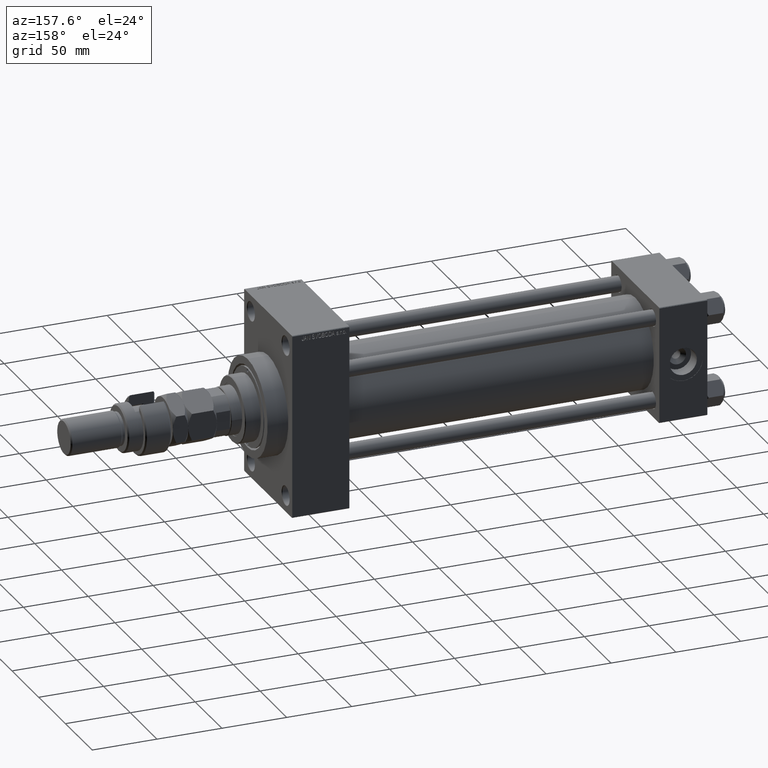
[diagram: clean part render]
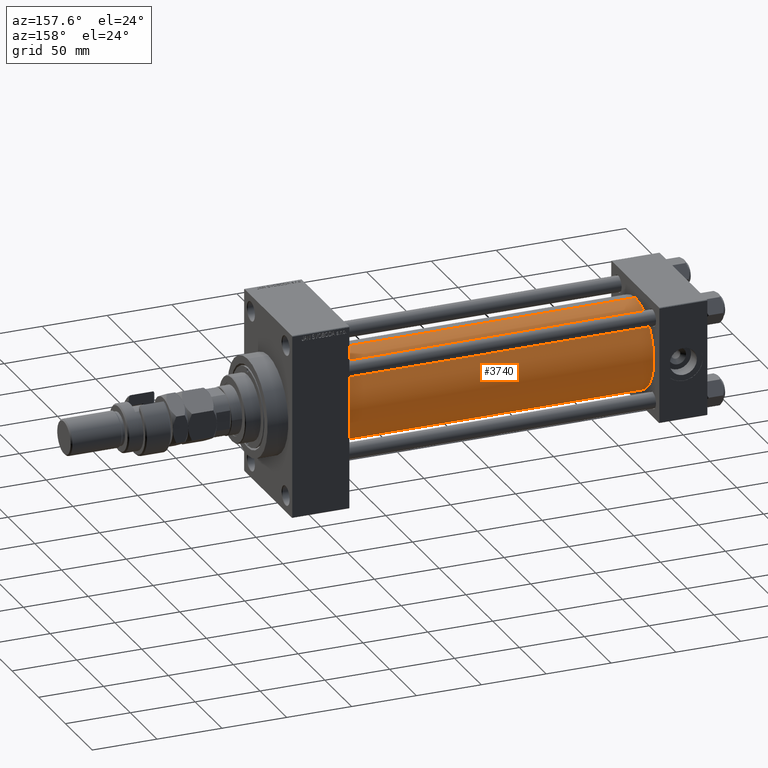
[diagram: same view with one face highlighted and labeled with its STEP entity id]
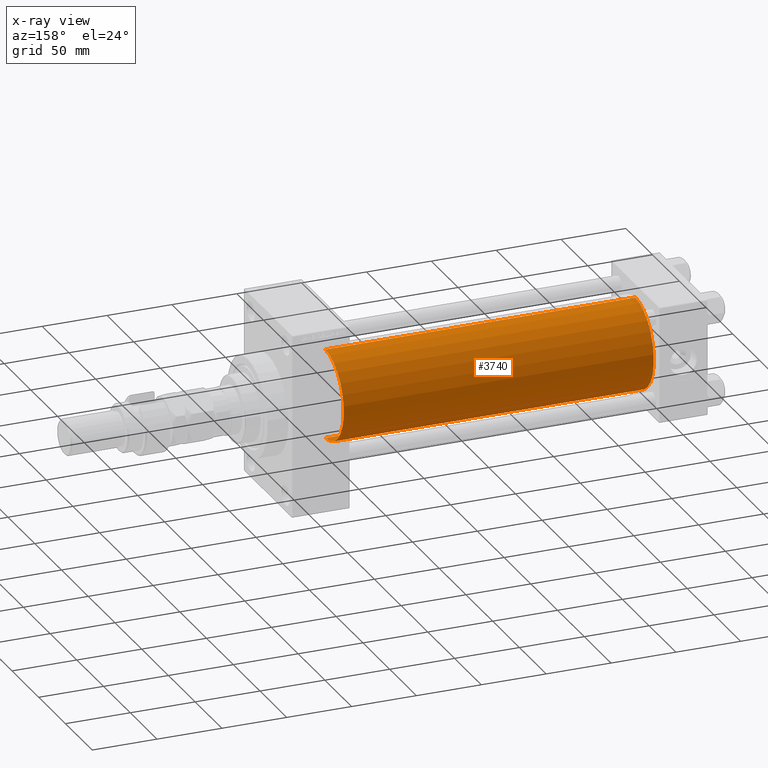
[diagram: x-ray of the same camera — body ghosted, the highlighted face saturated]
A machine part, auxiliary view. The second image highlights one B-rep face of the part: STEP entity #3740.
The next image is the same camera in x-ray: the body ghosted, the highlighted face saturated — about 0% of this face is hidden behind the body in this view.
In plain terms, the highlighted cylindrical surface (partial cylindrical patch) has radius 34.5 mm, axis along (-1, -0, -0).
Its self-contained STEP definition (entity closure, byte-faithful):
#2524 = DIRECTION ( 'NONE',  ( -1.000000000000000000, -0.000000000000000000, -0.000000000000000000 ) ) ;
#3740 = ADVANCED_FACE ( 'NONE', ( #38401 ), #10630, .T. ) ;
#4141 = CARTESIAN_POINT ( 'NONE',  ( 275.9999999999999432, -2.602085213965210642E-15, 0.000000000000000000 ) ) ;
#6220 = AXIS2_PLACEMENT_3D ( 'NONE', #4141, #30613, #8444 ) ;
#6693 = CARTESIAN_POINT ( 'NONE',  ( 37.00000000000000711, 1.622946243093157097E-15, -34.50000000000000000 ) ) ;
#8025 = ORIENTED_EDGE ( 'NONE', *, *, #21798, .F. ) ;
#8444 = DIRECTION ( 'NONE',  ( 0.000000000000000000, 0.000000000000000000, -1.000000000000000000 ) ) ;
#8945 = VECTOR ( 'NONE', #2524, 1000.000000000000000 ) ;
#9100 = DIRECTION ( 'NONE',  ( 1.000000000000000000, -0.000000000000000000, 0.000000000000000000 ) ) ;
#10283 = CIRCLE ( 'NONE', #6220, 34.50000000000000000 ) ;
#10630 = CYLINDRICAL_SURFACE ( 'NONE', #12486, 34.50000000000000000 ) ;
#11109 = CARTESIAN_POINT ( 'NONE',  ( 275.9999999999999432, -2.602085213965210642E-15, 34.50000000000000000 ) ) ;
#12486 = AXIS2_PLACEMENT_3D ( 'NONE', #15482, #14959, #46527 ) ;
#13290 = EDGE_CURVE ( 'NONE', #37198, #38712, #10283, .T. ) ;
#14959 = DIRECTION ( 'NONE',  ( -1.000000000000000000, -0.000000000000000000, -0.000000000000000000 ) ) ;
#15186 = DIRECTION ( 'NONE',  ( -1.000000000000000000, -0.000000000000000000, -0.000000000000000000 ) ) ;
#15482 = CARTESIAN_POINT ( 'NONE',  ( 275.9999999999999432, -2.602085213965210642E-15, 0.000000000000000000 ) ) ;
#18315 = EDGE_LOOP ( 'NONE', ( #23701, #27811, #29661, #8025 ) ) ;
#18839 = AXIS2_PLACEMENT_3D ( 'NONE', #27951, #9100, #36337 ) ;
#20385 = CARTESIAN_POINT ( 'NONE',  ( 37.00000000000000711, -2.602085213965210642E-15, 34.50000000000000000 ) ) ;
#21798 = EDGE_CURVE ( 'NONE', #38712, #34398, #42443, .T. ) ;
#23615 = VECTOR ( 'NONE', #15186, 1000.000000000000000 ) ;
#23701 = ORIENTED_EDGE ( 'NONE', *, *, #13290, .F. ) ;
#27811 = ORIENTED_EDGE ( 'NONE', *, *, #37826, .T. ) ;
#27951 = CARTESIAN_POINT ( 'NONE',  ( 37.00000000000000711, -2.602085213965210642E-15, 0.000000000000000000 ) ) ;
#29661 = ORIENTED_EDGE ( 'NONE', *, *, #40660, .T. ) ;
#30613 = DIRECTION ( 'NONE',  ( 1.000000000000000000, 0.000000000000000000, 0.000000000000000000 ) ) ;
#33441 = CARTESIAN_POINT ( 'NONE',  ( 275.9999999999999432, 1.622946243093157097E-15, -34.50000000000000000 ) ) ;
#34398 = VERTEX_POINT ( 'NONE', #20385 ) ;
#36337 = DIRECTION ( 'NONE',  ( 0.000000000000000000, 0.000000000000000000, 1.000000000000000000 ) ) ;
#37198 = VERTEX_POINT ( 'NONE', #33441 ) ;
#37386 = CARTESIAN_POINT ( 'NONE',  ( 275.9999999999999432, 1.622946243093157097E-15, -34.50000000000000000 ) ) ;
#37826 = EDGE_CURVE ( 'NONE', #37198, #45318, #41203, .T. ) ;
#38369 = CIRCLE ( 'NONE', #18839, 34.50000000000000000 ) ;
#38401 = FACE_OUTER_BOUND ( 'NONE', #18315, .T. ) ;
#38712 = VERTEX_POINT ( 'NONE', #41468 ) ;
#40660 = EDGE_CURVE ( 'NONE', #45318, #34398, #38369, .T. ) ;
#41203 = LINE ( 'NONE', #37386, #8945 ) ;
#41468 = CARTESIAN_POINT ( 'NONE',  ( 275.9999999999999432, -2.602085213965210642E-15, 34.50000000000000000 ) ) ;
#42443 = LINE ( 'NONE', #11109, #23615 ) ;
#45318 = VERTEX_POINT ( 'NONE', #6693 ) ;
#46527 = DIRECTION ( 'NONE',  ( 0.000000000000000000, 0.000000000000000000, 1.000000000000000000 ) ) ;